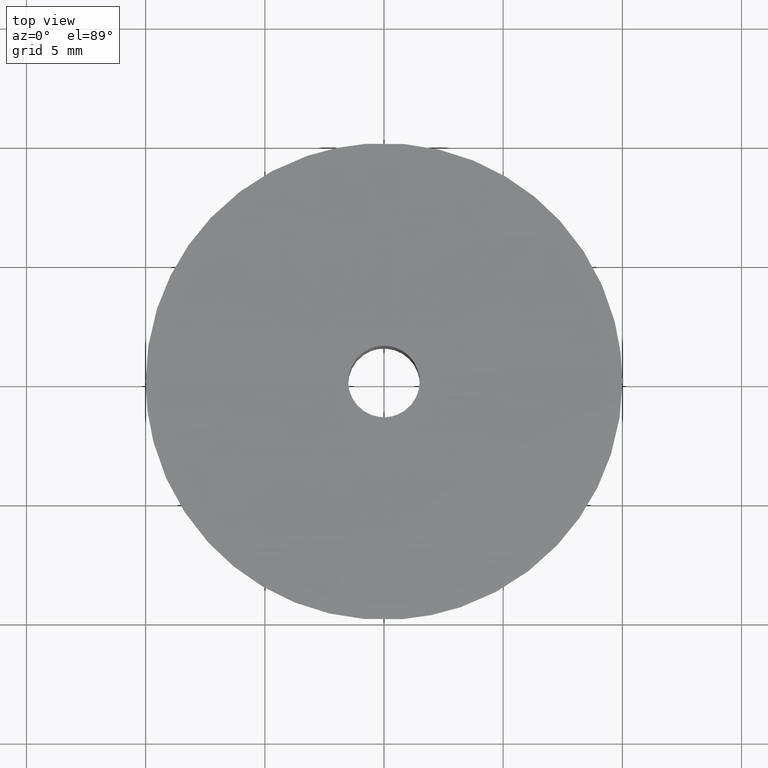
[diagram: clean part render]
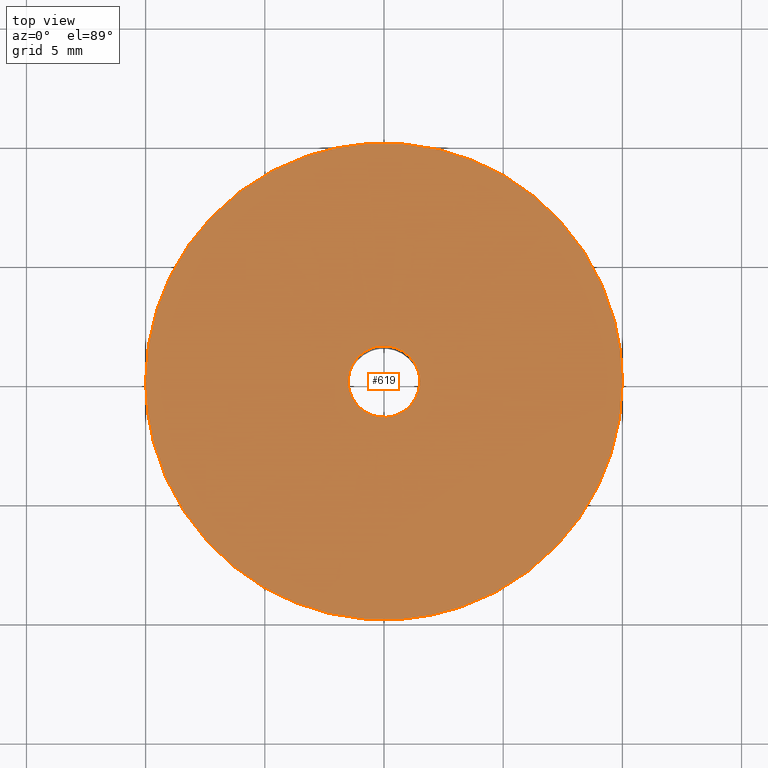
[diagram: same view with one face highlighted and labeled with its STEP entity id]
A machine part, top view. The second image highlights one B-rep face of the part: STEP entity #619.
In plain terms, the highlighted face is a freeform B-spline surface patch.
Its self-contained STEP definition (entity closure, byte-faithful):
#66=CARTESIAN_POINT('',(-0.177051352012515,1.489514289542246,12.0));
#67=VERTEX_POINT('',#66);
#68=CARTESIAN_POINT('',(1.500000000000000,0.0,12.0));
#69=VERTEX_POINT('',#68);
#70=CARTESIAN_POINT('',(-0.177051352012515,1.489514289542245,12.000000000000002));
#71=CARTESIAN_POINT('',(-0.088836179505531,1.500000000000000,12.0));
#72=CARTESIAN_POINT('',(0.0,1.500000000000000,12.0));
#73=CARTESIAN_POINT('',(1.500000000000000,1.500000000000000,12.0));
#74=CARTESIAN_POINT('',(1.500000000000000,0.0,12.0));
#82=(BOUNDED_CURVE()B_SPLINE_CURVE(2,(#70,#71,#72,#73,#74),.UNSPECIFIED.,.F.,.U.)B_SPLINE_CURVE_WITH_KNOTS((3,2,3),(0.229562473509432,0.250000000000000,0.500000000000000),.UNSPECIFIED.)CURVE()GEOMETRIC_REPRESENTATION_ITEM()RATIONAL_B_SPLINE_CURVE((0.956026754175709,0.976055948326369,1.0,0.707106781186548,1.0))REPRESENTATION_ITEM(''));
#83=EDGE_CURVE('',#67,#69,#82,.T.);
#124=CARTESIAN_POINT('',(0.091572809335385,-1.497202197630776,12.0));
#125=VERTEX_POINT('',#124);
#131=CARTESIAN_POINT('',(1.500000000000000,0.0,12.0));
#132=CARTESIAN_POINT('',(1.500000000000001,-1.411059100296042,12.0));
#133=CARTESIAN_POINT('',(0.091572809335385,-1.497202197630776,12.0));
#141=(BOUNDED_CURVE()B_SPLINE_CURVE(2,(#131,#132,#133),.UNSPECIFIED.,.F.,.U.)B_SPLINE_CURVE_WITH_KNOTS((3,3),(0.500000000000000,0.739332962234340),.UNSPECIFIED.)CURVE()GEOMETRIC_REPRESENTATION_ITEM()RATIONAL_B_SPLINE_CURVE((1.0,0.719603993292103,0.976072041656852))REPRESENTATION_ITEM(''));
#142=EDGE_CURVE('',#69,#125,#141,.T.);
#165=CARTESIAN_POINT('',(-1.500000000000000,0.0,12.0));
#166=VERTEX_POINT('',#165);
#167=CARTESIAN_POINT('',(-1.500000000000000,0.0,12.0));
#168=CARTESIAN_POINT('',(-1.500000000000000,1.332261788877733,12.0));
#169=CARTESIAN_POINT('',(-0.177051352012515,1.489514289542246,12.000000000000005));
#177=(BOUNDED_CURVE()B_SPLINE_CURVE(2,(#167,#168,#169),.UNSPECIFIED.,.F.,.U.)B_SPLINE_CURVE_WITH_KNOTS((3,3),(0.0,0.229562473509432),.UNSPECIFIED.)CURVE()GEOMETRIC_REPRESENTATION_ITEM()RATIONAL_B_SPLINE_CURVE((1.0,0.731050832860179,0.956026754175709))REPRESENTATION_ITEM(''));
#178=EDGE_CURVE('',#166,#67,#177,.T.);
#180=CARTESIAN_POINT('',(0.091572809335385,-1.497202197630776,11.999999999999996));
#181=CARTESIAN_POINT('',(0.045829144981075,-1.500000000000000,12.000000000000005));
#182=CARTESIAN_POINT('',(0.0,-1.500000000000000,12.0));
#183=CARTESIAN_POINT('',(-1.500000000000000,-1.500000000000000,12.0));
#184=CARTESIAN_POINT('',(-1.500000000000000,0.0,12.0));
#192=(BOUNDED_CURVE()B_SPLINE_CURVE(2,(#180,#181,#182,#183,#184),.UNSPECIFIED.,.F.,.U.)B_SPLINE_CURVE_WITH_KNOTS((3,2,3),(0.739332962234339,0.750000000000000,1.0),.UNSPECIFIED.)CURVE()GEOMETRIC_REPRESENTATION_ITEM()RATIONAL_B_SPLINE_CURVE((0.976072041656851,0.987502787894444,1.0,0.707106781186548,1.0))REPRESENTATION_ITEM(''));
#193=EDGE_CURVE('',#125,#166,#192,.T.);
#248=CARTESIAN_POINT('',(-10.0,0.0,12.0));
#249=VERTEX_POINT('',#248);
#250=CARTESIAN_POINT('',(-0.784585127532863,9.969173373309561,11.999997470845130));
#251=VERTEX_POINT('',#250);
#252=CARTESIAN_POINT('',(-10.0,0.0,12.0));
#253=CARTESIAN_POINT('',(-9.999999983463788,9.243910098048547,11.999998735422569));
#254=CARTESIAN_POINT('',(-0.784585127532863,9.969173373309561,11.999997470845130));
#262=(BOUNDED_CURVE()B_SPLINE_CURVE(2,(#252,#253,#254),.UNSPECIFIED.,.F.,.U.)B_SPLINE_CURVE_WITH_KNOTS((3,3),(0.0,0.236331400309219),.UNSPECIFIED.)CURVE()GEOMETRIC_REPRESENTATION_ITEM()RATIONAL_B_SPLINE_CURVE((1.0,0.723120541826970,0.969723564189059))REPRESENTATION_ITEM(''));
#263=EDGE_CURVE('',#249,#251,#262,.T.);
#304=CARTESIAN_POINT('',(0.784585127532862,-9.969173373309561,11.999997470845139));
#305=VERTEX_POINT('',#304);
#311=CARTESIAN_POINT('',(0.784585127532862,-9.969173373309561,11.999997470845143));
#312=CARTESIAN_POINT('',(0.392898125818107,-9.999999587403069,11.999997516773519));
#313=CARTESIAN_POINT('',(-0.000000031822138,-9.999999595658411,11.999997566458530));
#314=CARTESIAN_POINT('',(-10.000000015285925,-9.999999805772458,11.999998831035967));
#315=CARTESIAN_POINT('',(-10.0,0.0,12.0));
#323=(BOUNDED_CURVE()B_SPLINE_CURVE(2,(#311,#312,#313,#314,#315),.UNSPECIFIED.,.F.,.U.)B_SPLINE_CURVE_WITH_KNOTS((3,2,3),(0.736331400309219,0.750000000000000,1.0),.UNSPECIFIED.)CURVE()GEOMETRIC_REPRESENTATION_ITEM()RATIONAL_B_SPLINE_CURVE((0.969723564189059,0.983986239359578,1.0,0.707106781186548,1.0))REPRESENTATION_ITEM(''));
#324=EDGE_CURVE('',#305,#249,#323,.T.);
#347=CARTESIAN_POINT('',(10.0,0.0,12.0));
#348=VERTEX_POINT('',#347);
#349=CARTESIAN_POINT('',(-0.784585127532863,9.969173373309561,11.999997470845130));
#350=CARTESIAN_POINT('',(-0.392898125818108,9.999999587403069,11.999997516773519));
#351=CARTESIAN_POINT('',(0.000000031822137,9.999999595658411,11.999997566458530));
#352=CARTESIAN_POINT('',(10.000000015285925,9.999999805772458,11.999998831035963));
#353=CARTESIAN_POINT('',(10.0,0.0,12.0));
#361=(BOUNDED_CURVE()B_SPLINE_CURVE(2,(#349,#350,#351,#352,#353),.UNSPECIFIED.,.F.,.U.)B_SPLINE_CURVE_WITH_KNOTS((3,2,3),(0.236331400309219,0.250000000000000,0.500000000000000),.UNSPECIFIED.)CURVE()GEOMETRIC_REPRESENTATION_ITEM()RATIONAL_B_SPLINE_CURVE((0.969723564189059,0.983986239359578,1.0,0.707106781186548,1.0))REPRESENTATION_ITEM(''));
#362=EDGE_CURVE('',#251,#348,#361,.T.);
#364=CARTESIAN_POINT('',(10.0,0.0,12.0));
#365=CARTESIAN_POINT('',(9.999999983463788,-9.243910098048547,11.999998735422569));
#366=CARTESIAN_POINT('',(0.784585127532862,-9.969173373309561,11.999997470845143));
#374=(BOUNDED_CURVE()B_SPLINE_CURVE(2,(#364,#365,#366),.UNSPECIFIED.,.F.,.U.)B_SPLINE_CURVE_WITH_KNOTS((3,3),(0.500000000000000,0.736331400309219),.UNSPECIFIED.)CURVE()GEOMETRIC_REPRESENTATION_ITEM()RATIONAL_B_SPLINE_CURVE((1.0,0.723120541826970,0.969723564189059))REPRESENTATION_ITEM(''));
#375=EDGE_CURVE('',#348,#305,#374,.T.);
#602=CARTESIAN_POINT('',(-10.998999961236120,-10.995946517086031,12.0));
#603=CARTESIAN_POINT('',(10.999000497677921,-10.995946517086031,12.0));
#604=CARTESIAN_POINT('',(-10.998999961236120,10.995946517086031,12.0));
#605=CARTESIAN_POINT('',(10.999000497677921,10.995946517086031,12.0));
#606=B_SPLINE_SURFACE_WITH_KNOTS('',1,1,((#602,#604),(#603,#605)),.UNSPECIFIED.,.F.,.F.,.U.,(2,2),(2,2),(0.0,21.998000458914039),(0.0,21.991893034172062),.UNSPECIFIED.);
#607=ORIENTED_EDGE('',*,*,#324,.F.);
#608=ORIENTED_EDGE('',*,*,#375,.F.);
#609=ORIENTED_EDGE('',*,*,#362,.F.);
#610=ORIENTED_EDGE('',*,*,#263,.F.);
#611=EDGE_LOOP('',(#607,#608,#609,#610));
#612=FACE_OUTER_BOUND('',#611,.T.);
#613=ORIENTED_EDGE('',*,*,#142,.T.);
#614=ORIENTED_EDGE('',*,*,#193,.T.);
#615=ORIENTED_EDGE('',*,*,#178,.T.);
#616=ORIENTED_EDGE('',*,*,#83,.T.);
#617=EDGE_LOOP('',(#613,#614,#615,#616));
#618=FACE_BOUND('',#617,.T.);
#619=ADVANCED_FACE('',(#612,#618),#606,.T.);